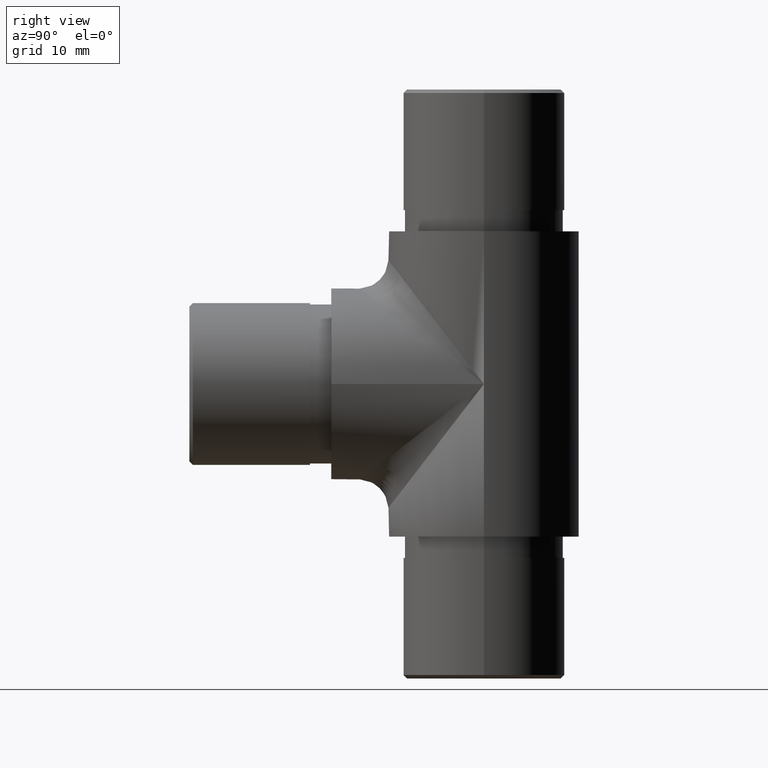
[diagram: clean part render]
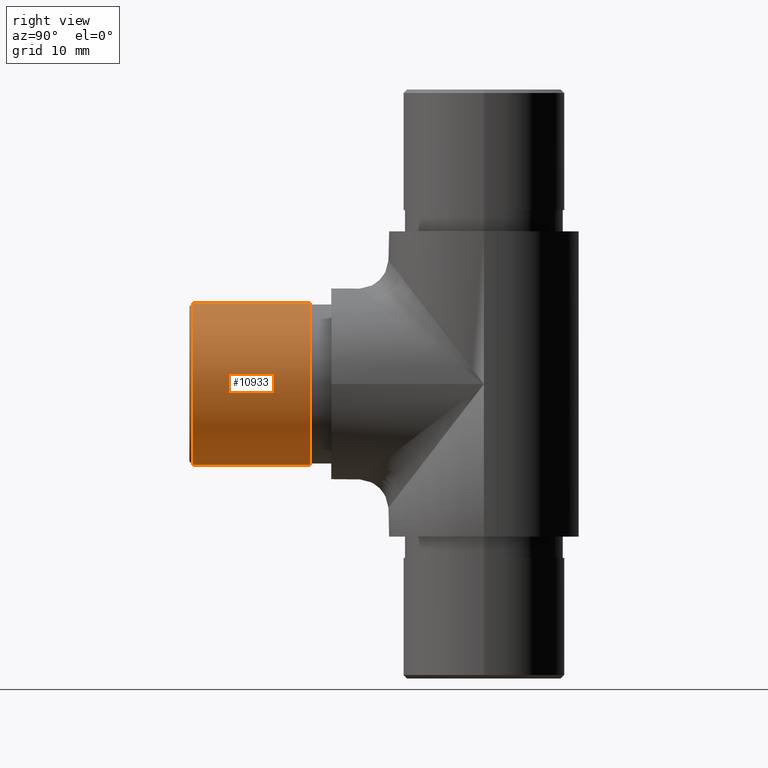
[diagram: same view with one face highlighted and labeled with its STEP entity id]
A machine part, right view. The second image highlights one B-rep face of the part: STEP entity #10933.
In plain terms, the highlighted cylindrical surface (bore or boss wall) has radius 11.4 mm, axis along (-0, 1, -0).
Its self-contained STEP definition (entity closure, byte-faithful):
#62 = VERTEX_POINT ( 'NONE', #4546 ) ;
#368 = AXIS2_PLACEMENT_3D ( 'NONE', #11196, #3364, #5375 ) ;
#858 = FACE_OUTER_BOUND ( 'NONE', #11698, .T. ) ;
#1655 = CYLINDRICAL_SURFACE ( 'NONE', #368, 11.40000000000000000 ) ;
#2353 = DIRECTION ( 'NONE',  ( 0.0000000000000000000, -1.000000000000000000, 0.0000000000000000000 ) ) ;
#2497 = CARTESIAN_POINT ( 'NONE',  ( 0.0000000000000000000, 17.00000000000000000, -11.40000000000000000 ) ) ;
#2501 = EDGE_LOOP ( 'NONE', ( #8530 ) ) ;
#3045 = ORIENTED_EDGE ( 'NONE', *, *, #4284, .T. ) ;
#3364 = DIRECTION ( 'NONE',  ( -0.0000000000000000000, 1.000000000000000000, -0.0000000000000000000 ) ) ;
#3519 = DIRECTION ( 'NONE',  ( 0.0000000000000000000, 0.0000000000000000000, -1.000000000000000000 ) ) ;
#4284 = EDGE_CURVE ( 'NONE', #4420, #4420, #8797, .T. ) ;
#4420 = VERTEX_POINT ( 'NONE', #2497 ) ;
#4546 = CARTESIAN_POINT ( 'NONE',  ( 0.0000000000000000000, 0.5000000000000056600, -11.40000000000000000 ) ) ;
#5375 = DIRECTION ( 'NONE',  ( 0.0000000000000000000, 0.0000000000000000000, 1.000000000000000000 ) ) ;
#6264 = CIRCLE ( 'NONE', #8855, 11.40000000000000000 ) ;
#7224 = AXIS2_PLACEMENT_3D ( 'NONE', #11493, #2353, #3519 ) ;
#7343 = DIRECTION ( 'NONE',  ( 0.0000000000000000000, 1.000000000000000000, 0.0000000000000000000 ) ) ;
#8530 = ORIENTED_EDGE ( 'NONE', *, *, #8701, .T. ) ;
#8701 = EDGE_CURVE ( 'NONE', #62, #62, #6264, .T. ) ;
#8797 = CIRCLE ( 'NONE', #7224, 11.40000000000000000 ) ;
#8855 = AXIS2_PLACEMENT_3D ( 'NONE', #9383, #7343, #10267 ) ;
#9383 = CARTESIAN_POINT ( 'NONE',  ( 0.0000000000000000000, 0.5000000000000056600, 0.0000000000000000000 ) ) ;
#10267 = DIRECTION ( 'NONE',  ( 0.0000000000000000000, 0.0000000000000000000, -1.000000000000000000 ) ) ;
#10667 = FACE_OUTER_BOUND ( 'NONE', #2501, .T. ) ;
#10933 = ADVANCED_FACE ( 'NONE', ( #10667, #858 ), #1655, .T. ) ;
#11196 = CARTESIAN_POINT ( 'NONE',  ( 0.0000000000000000000, 0.0000000000000000000, 0.0000000000000000000 ) ) ;
#11493 = CARTESIAN_POINT ( 'NONE',  ( 0.0000000000000000000, 17.00000000000000000, 0.0000000000000000000 ) ) ;
#11698 = EDGE_LOOP ( 'NONE', ( #3045 ) ) ;